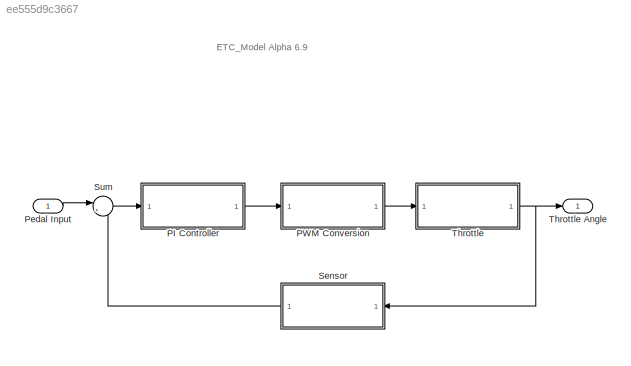
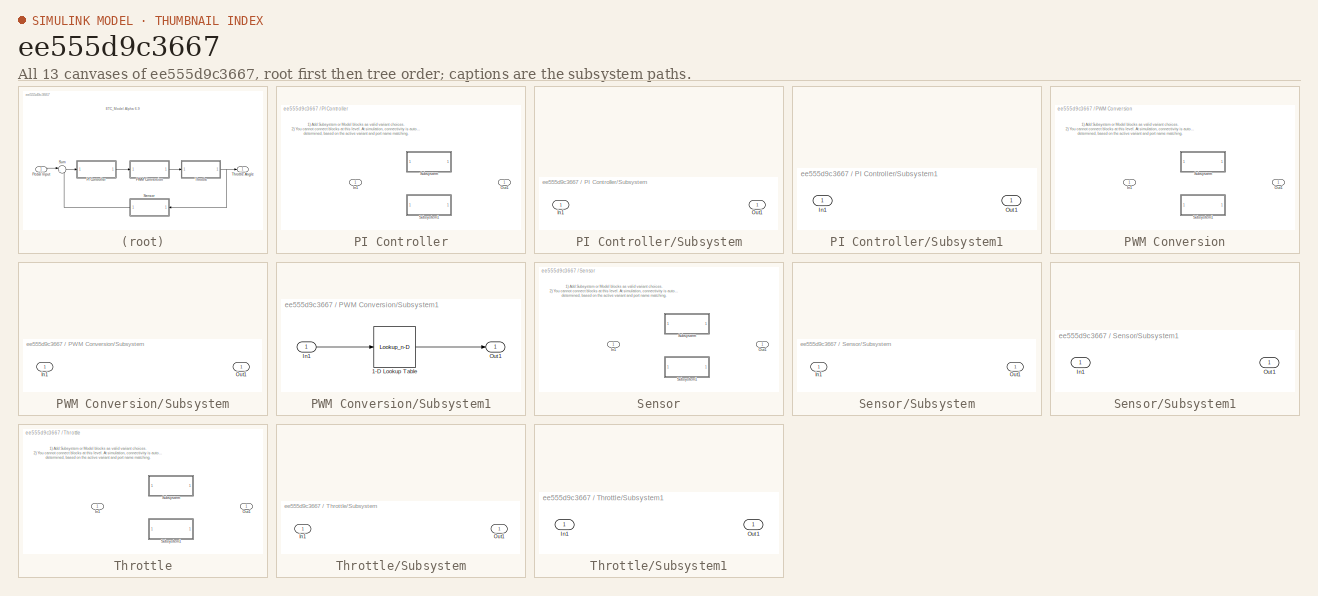
[diagram: thumbnail index - all 13 canvases of the model, root first then tree order]
MODEL slx_ee555d9c3667
KIND model
CONFIG AbsTol = auto
CONFIG EnableMultiTasking = off
CONFIG FixedStep = auto
CONFIG MaxStep = auto
CONFIG MinStep = auto
CONFIG RelTol = 1e-3
CONFIG SampleTimeConstraint = Unconstrained
CONFIG Solver = VariableStepAuto
CONFIG SolverName = VariableStepAuto
CONFIG StartTime = 0.0
CONFIG StopTime = 10.0
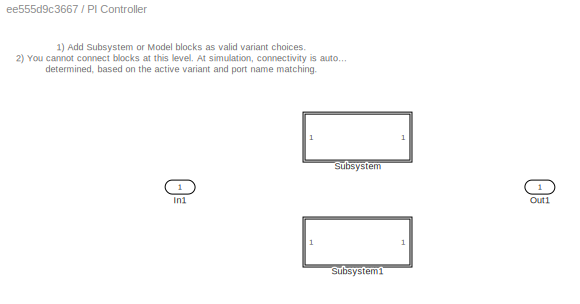
BLOCK [SubSystem] PI Controller
  Ports = [1, 1]
  RequestExecContextInheritance = off
  Variant = on
BLOCK [Inport] PI Controller/In1
  IconDisplay = Port number
BLOCK [Outport] PI Controller/Out1
  IconDisplay = Port number
BLOCK [SubSystem] PI Controller/Subsystem
  Ports = [1, 1]
  RequestExecContextInheritance = off
  Variant = off
  VariantControl = Variant
BLOCK [Inport] PI Controller/Subsystem/In1
  IconDisplay = Port number
BLOCK [Outport] PI Controller/Subsystem/Out1
  IconDisplay = Port number
BLOCK [SubSystem] PI Controller/Subsystem1
  Ports = [1, 1]
  RequestExecContextInheritance = off
  Variant = off
  VariantControl = Variant1
BLOCK [Inport] PI Controller/Subsystem1/In1
  IconDisplay = Port number
BLOCK [Outport] PI Controller/Subsystem1/Out1
  IconDisplay = Port number
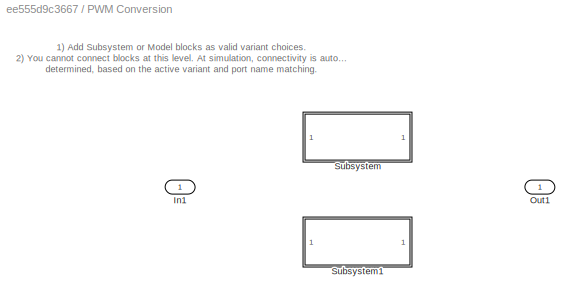
BLOCK [SubSystem] PWM Conversion
  Ports = [1, 1]
  RequestExecContextInheritance = off
  Variant = on
BLOCK [Inport] PWM Conversion/In1
  IconDisplay = Port number
BLOCK [Outport] PWM Conversion/Out1
  IconDisplay = Port number
BLOCK [SubSystem] PWM Conversion/Subsystem
  Ports = [1, 1]
  RequestExecContextInheritance = off
  Variant = off
  VariantControl = Variant
BLOCK [Inport] PWM Conversion/Subsystem/In1
  IconDisplay = Port number
BLOCK [Outport] PWM Conversion/Subsystem/Out1
  IconDisplay = Port number
BLOCK [SubSystem] PWM Conversion/Subsystem1
  Ports = [1, 1]
  RequestExecContextInheritance = off
  Variant = off
  VariantControl = Variant1
BLOCK [Lookup_n-D] PWM Conversion/Subsystem1/1-D Lookup Table
  BreakpointsForDimension1 = [-5:5]
  InternalRulePriority = Speed
  NumberOfTableDimensions = 1
  Ports = [1, 1]
  RndMeth = Simplest
  Table = tanh([-5:5])
BLOCK [Inport] PWM Conversion/Subsystem1/In1
  IconDisplay = Port number
BLOCK [Outport] PWM Conversion/Subsystem1/Out1
  IconDisplay = Port number
BLOCK [Inport] Pedal Input
  IconDisplay = Port number
BLOCK [SubSystem] Sensor
  Ports = [1, 1]
  RequestExecContextInheritance = off
  Variant = on
BLOCK [Inport] Sensor/In1
  IconDisplay = Port number
BLOCK [Outport] Sensor/Out1
  IconDisplay = Port number
BLOCK [SubSystem] Sensor/Subsystem
  Ports = [1, 1]
  RequestExecContextInheritance = off
  Variant = off
  VariantControl = Variant
BLOCK [Inport] Sensor/Subsystem/In1
  IconDisplay = Port number
BLOCK [Outport] Sensor/Subsystem/Out1
  IconDisplay = Port number
BLOCK [SubSystem] Sensor/Subsystem1
  Ports = [1, 1]
  RequestExecContextInheritance = off
  Variant = off
  VariantControl = Variant1
BLOCK [Inport] Sensor/Subsystem1/In1
  IconDisplay = Port number
BLOCK [Outport] Sensor/Subsystem1/Out1
  IconDisplay = Port number
BLOCK [Sum] Sum
  IconShape = round
  InputSameDT = off
  Inputs = |+-
  OutDataTypeStr = Inherit: Inherit via internal rule
  Ports = [2, 1]
  SaturateOnIntegerOverflow = off
BLOCK [SubSystem] Throttle
  Ports = [1, 1]
  RequestExecContextInheritance = off
  Variant = on
BLOCK [Outport] Throttle Angle
  IconDisplay = Port number
BLOCK [Inport] Throttle/In1
  IconDisplay = Port number
BLOCK [Outport] Throttle/Out1
  IconDisplay = Port number
BLOCK [SubSystem] Throttle/Subsystem
  Ports = [1, 1]
  RequestExecContextInheritance = off
  Variant = off
  VariantControl = Variant
BLOCK [Inport] Throttle/Subsystem/In1
  IconDisplay = Port number
BLOCK [Outport] Throttle/Subsystem/Out1
  IconDisplay = Port number
BLOCK [SubSystem] Throttle/Subsystem1
  Ports = [1, 1]
  RequestExecContextInheritance = off
  Variant = off
  VariantControl = Variant1
BLOCK [Inport] Throttle/Subsystem1/In1
  IconDisplay = Port number
BLOCK [Outport] Throttle/Subsystem1/Out1
  IconDisplay = Port number
ANNOTATION (root): ETC_Model Alpha 6.9
ANNOTATION PI Controller: 1) Add Subsystem or Model blocks as valid variant choices. 2) You cannot connect blocks at this level. At simulation, connectivity is automatically determined, based on the active variant and port name matching.
ANNOTATION PWM Conversion: 1) Add Subsystem or Model blocks as valid variant choices. 2) You cannot connect blocks at this level. At simulation, connectivity is automatically determined, based on the active variant and port name matching.
ANNOTATION Sensor: 1) Add Subsystem or Model blocks as valid variant choices. 2) You cannot connect blocks at this level. At simulation, connectivity is automatically determined, based on the active variant and port name matching.
ANNOTATION Throttle: 1) Add Subsystem or Model blocks as valid variant choices. 2) You cannot connect blocks at this level. At simulation, connectivity is automatically determined, based on the active variant and port name matching.
LINE PI Controller:1 -> PWM Conversion:1
LINE PWM Conversion/Subsystem1/1-D Lookup Table:1 -> PWM Conversion/Subsystem1/Out1:1
LINE PWM Conversion/Subsystem1/In1:1 -> PWM Conversion/Subsystem1/1-D Lookup Table:1
LINE PWM Conversion:1 -> Throttle:1
LINE Pedal Input:1 -> Sum:1
LINE Sensor:1 -> Sum:2
LINE Sum:1 -> PI Controller:1
NET Throttle:1 -> Sensor:1, Throttle Angle:1
note: NET lines group one-source signal fan-out (src -> all destinations, sorted); 1:1 wires keep LINE
